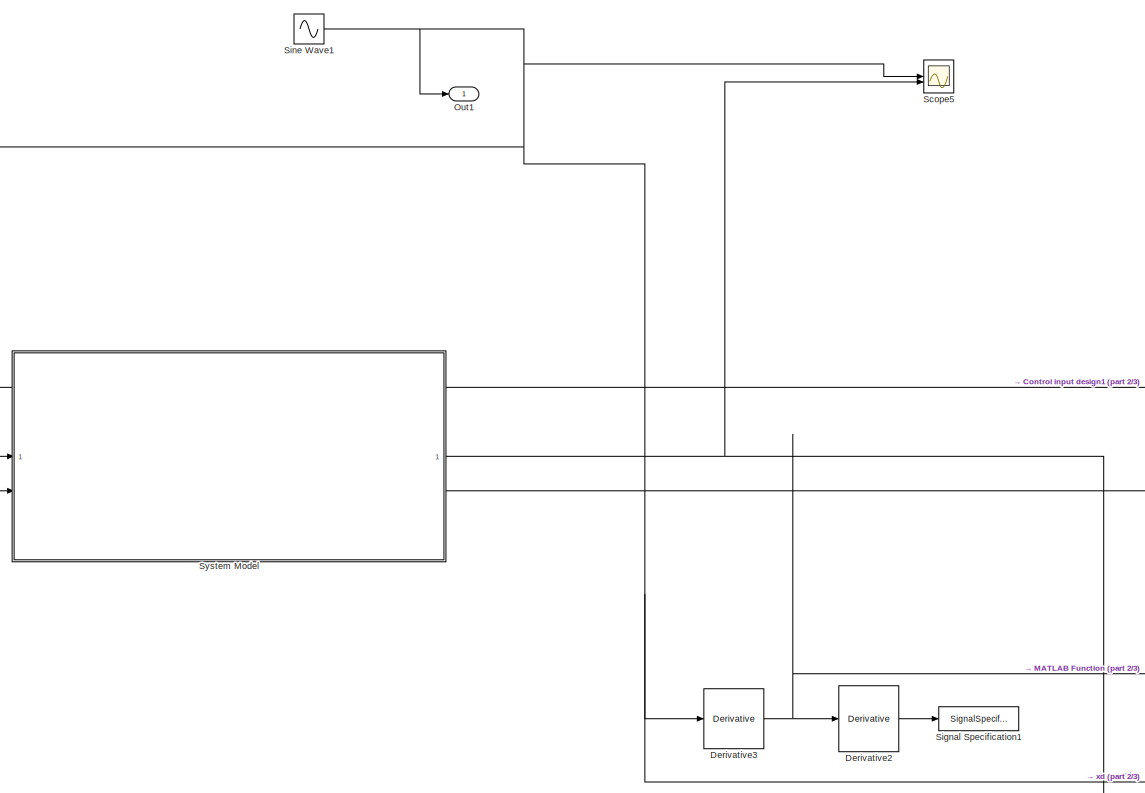
[diagram: root canvas - part 1/3, middle left region]
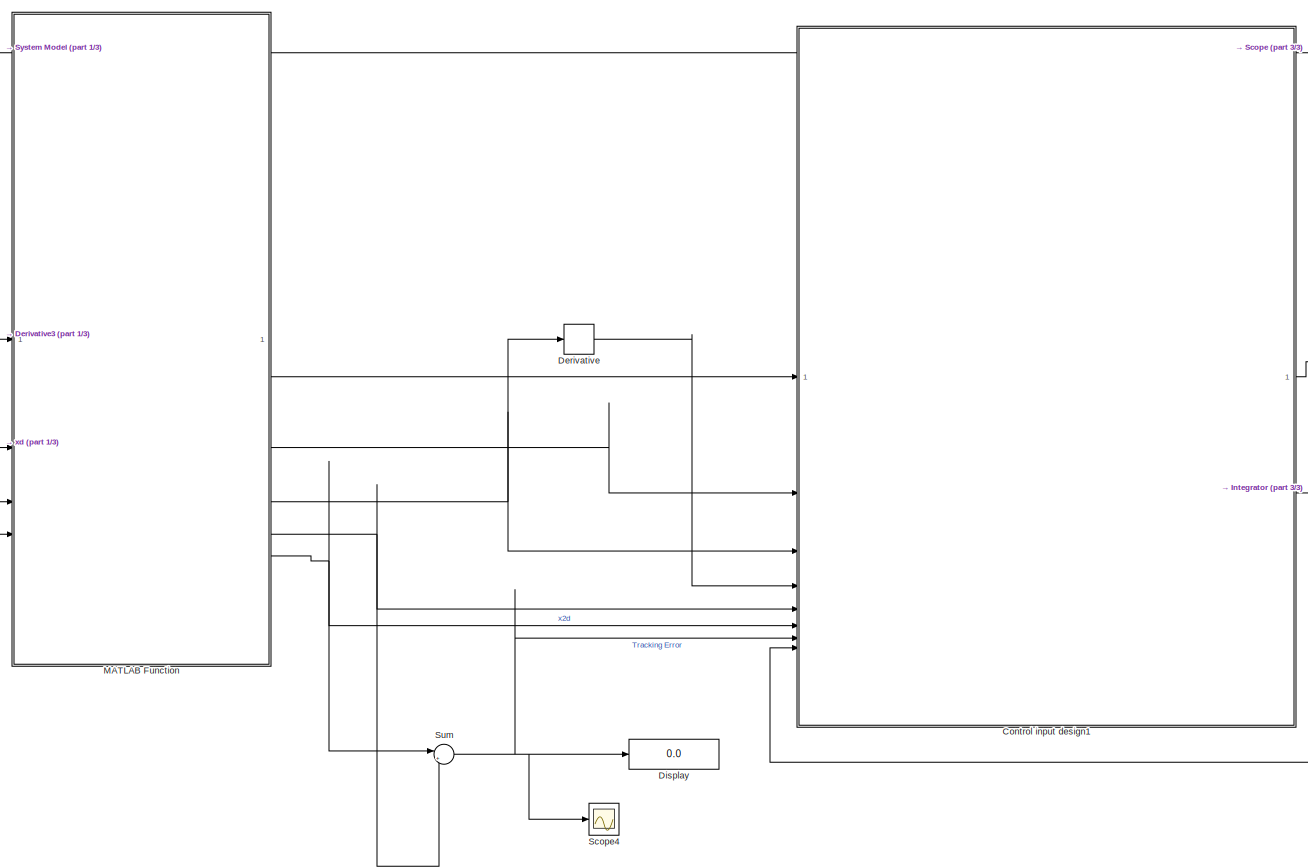
[diagram: root canvas - part 2/3, middle right region]
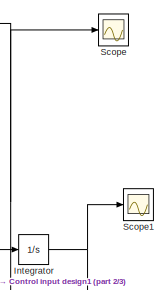
[diagram: root canvas - part 3/3, middle right region]
MODEL slx_8fe7bdc4851f
KIND model
CONFIG AbsTol = auto
CONFIG EnableMultiTasking = off
CONFIG FixedStep = auto
CONFIG MaxStep = auto
CONFIG MinStep = auto
CONFIG RelTol = 1e-3
CONFIG SampleTimeConstraint = Unconstrained
CONFIG SolverName = VariableStepAuto
CONFIG StartTime = 0.0
CONFIG StopTime = 10.0
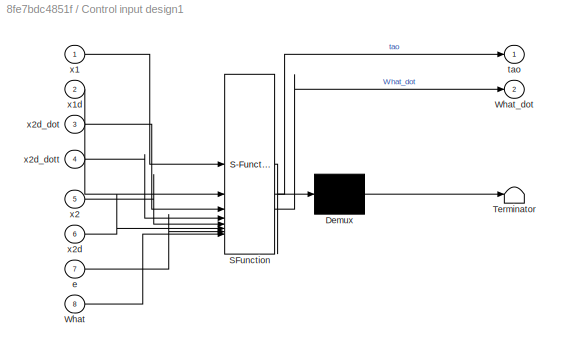
BLOCK [SubSystem] Control input design1
  ErrorFcn = Stateflow.Translate.translate
  PermitHierarchicalResolution = ExplicitOnly
  SFBlockType = MATLAB Function
  TreatAsAtomicUnit = on
BLOCK [Demux] Control input design1/ Demux 
  Outputs = 1
BLOCK [S-Function] Control input design1/ SFunction 
  EnableBusSupport = on
  FunctionName = sf_sfun
  PortCounts = [8 3]
  SFcnIsStateOwnerBlock = off
  SFunctionDeploymentMode = off
  Tag = Stateflow S-Function 3
BLOCK [Terminator] Control input design1/ Terminator 
BLOCK [Inport] Control input design1/What
  Port = 8
BLOCK [Outport] Control input design1/What_dot
  Port = 2
BLOCK [Inport] Control input design1/e
  Port = 7
BLOCK [Outport] Control input design1/tao
BLOCK [Inport] Control input design1/x1
BLOCK [Inport] Control input design1/x1d
  Port = 2
BLOCK [Inport] Control input design1/x2
  Port = 5
BLOCK [Inport] Control input design1/x2d
  Port = 6
BLOCK [Inport] Control input design1/x2d_dot
  Port = 3
BLOCK [Inport] Control input design1/x2d_dott
  Port = 4
BLOCK [Derivative] Derivative
BLOCK [Derivative] Derivative2
BLOCK [Derivative] Derivative3
BLOCK [Display] Display
  Decimation = 1
BLOCK [Integrator] Integrator
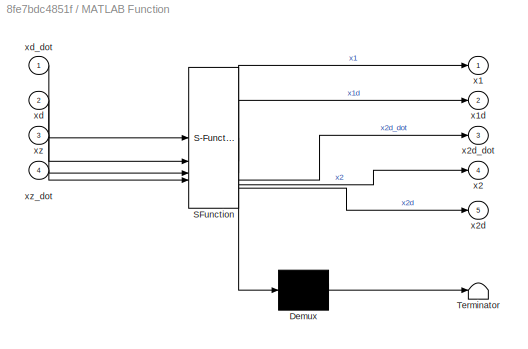
BLOCK [SubSystem] MATLAB Function
  ErrorFcn = Stateflow.Translate.translate
  PermitHierarchicalResolution = ExplicitOnly
  SFBlockType = MATLAB Function
  TreatAsAtomicUnit = on
BLOCK [Demux] MATLAB Function/ Demux 
  Outputs = 1
BLOCK [S-Function] MATLAB Function/ SFunction 
  EnableBusSupport = on
  FunctionName = sf_sfun
  PortCounts = [4 6]
  SFcnIsStateOwnerBlock = off
  SFunctionDeploymentMode = off
  Tag = Stateflow S-Function 2
BLOCK [Terminator] MATLAB Function/ Terminator 
BLOCK [Outport] MATLAB Function/x1
BLOCK [Outport] MATLAB Function/x1d
  Port = 2
BLOCK [Outport] MATLAB Function/x2
  Port = 4
BLOCK [Outport] MATLAB Function/x2d
  Port = 5
BLOCK [Outport] MATLAB Function/x2d_dot
  Port = 3
BLOCK [Inport] MATLAB Function/xd
  Port = 2
BLOCK [Inport] MATLAB Function/xd_dot
BLOCK [Inport] MATLAB Function/xz
  Port = 3
BLOCK [Inport] MATLAB Function/xz_dot
  Port = 4
BLOCK [Outport] Out1
BLOCK [Scope] Scope
  Floating = off
  NumInputPorts = 1
  ScopeSpecificationString = Simulink.scopes.TimeScopeBlockCfg('CurrentConfiguration', extmgr.ConfigurationSet(extmgr.Configuration('Core','General UI',true),extmgr.Configuration('Core','Source UI',true),extmgr.Configuration('Sources','WiredSimulink',true,'DataLoggingVariableName','ScopeData1'),extmgr.Configuration('Visuals','Time Domain',true,'SerializedDisplays',{struct('MinYLimReal','-8.47007','MaxYLimReal','6.21649','YLab...<+1502ch>
BLOCK [Scope] Scope1
  Floating = off
  NumInputPorts = 1
  ScopeSpecificationString = Simulink.scopes.TimeScopeBlockCfg('CurrentConfiguration', extmgr.ConfigurationSet(extmgr.Configuration('Core','General UI',true),extmgr.Configuration('Core','Source UI',true),extmgr.Configuration('Sources','WiredSimulink',true,'DataLoggingVariableName','ScopeData2'),extmgr.Configuration('Visuals','Time Domain',true,'SerializedDisplays',{struct('MinYLimReal','-0.34046','MaxYLimReal','0.1625','YLabe...<+1562ch>
BLOCK [Scope] Scope4
  Floating = off
  NumInputPorts = 1
  ScopeSpecificationString = Simulink.scopes.TimeScopeBlockCfg('CurrentConfiguration', extmgr.ConfigurationSet(extmgr.Configuration('Core','General UI',true),extmgr.Configuration('Core','Source UI',true),extmgr.Configuration('Sources','WiredSimulink',true),extmgr.Configuration('Visuals','Time Domain',true,'SerializedDisplays',{struct('MinYLimReal','-0.10979','MaxYLimReal','0.07159','YLabelReal','','MinYLimMag','0.00000','MaxY...<+1452ch>
BLOCK [Scope] Scope5
  Floating = off
  NumInputPorts = 2
  ScopeSpecificationString = Simulink.scopes.TimeScopeBlockCfg('CurrentConfiguration', extmgr.ConfigurationSet(extmgr.Configuration('Core','General UI',true),extmgr.Configuration('Core','Source UI',true),extmgr.Configuration('Sources','WiredSimulink',true,'DataLoggingVariableName','ScopeData5'),extmgr.Configuration('Visuals','Time Domain',true,'SerializedDisplays',{struct('MinYLimReal','-1.27121','MaxYLimReal','1.27447','YLab...<+1523ch>
BLOCK [SignalSpecification] Signal Specification1
  Dimensions = 1
BLOCK [Sin] Sine Wave1
  SampleTime = 0
BLOCK [Sum] Sum
  Inputs = |+-
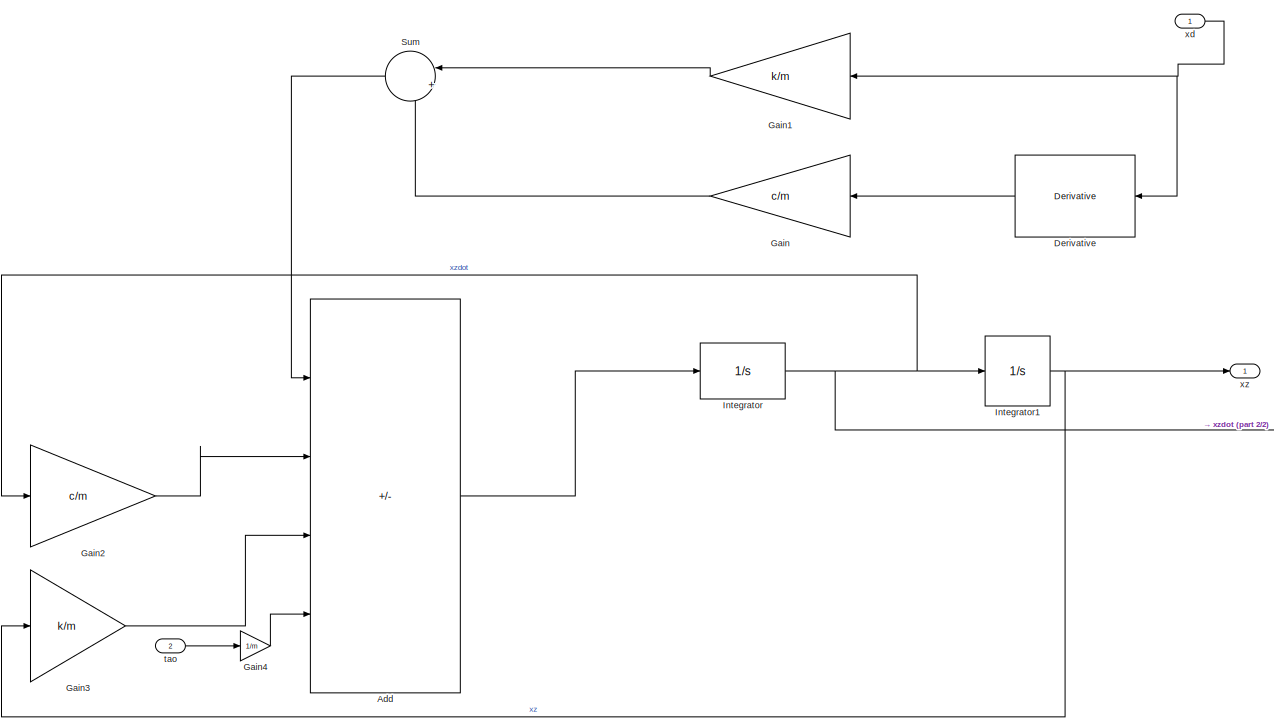
[diagram: System Model - part 1/2, left side, full height]
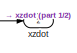
[diagram: System Model - part 2/2, middle right region]
BLOCK [SubSystem] System Model
BLOCK [Sum] System Model/Add
  IconShape = rectangular
  Inputs = +--+
BLOCK [Derivative] System Model/Derivative
BLOCK [Gain] System Model/Gain
  Gain = c/m
BLOCK [Gain] System Model/Gain1
  Gain = k/m
BLOCK [Gain] System Model/Gain2
  Gain = c/m
BLOCK [Gain] System Model/Gain3
  Gain = k/m
BLOCK [Gain] System Model/Gain4
  Gain = 1/m
BLOCK [Integrator] System Model/Integrator
BLOCK [Integrator] System Model/Integrator1
BLOCK [Sum] System Model/Sum
  Inputs = |++
BLOCK [Inport] System Model/tao
  Port = 2
BLOCK [Inport] System Model/xd
BLOCK [Outport] System Model/xz
BLOCK [Outport] System Model/xzdot
  Port = 2
NET Control input design1:1 -> Scope:1, System Model:2
LINE Control input design1:2 -> Integrator:1
LINE Derivative2:1 -> Signal Specification1:1
NET Derivative3:1 -> Derivative2:1, MATLAB Function:1
LINE Derivative:1 -> Control input design1:4
NET Integrator:1 -> Control input design1:8, Scope1:1
LINE MATLAB Function:1 -> Control input design1:1
LINE MATLAB Function:2 -> Control input design1:2
NET MATLAB Function:3 -> Control input design1:3, Derivative:1
NET MATLAB Function:4 -> Control input design1:5, Sum:2
NET MATLAB Function:5 -> Control input design1:6, Sum:1
NET Sine Wave1:1 -> Derivative3:1, MATLAB Function:2, Out1:1, Scope5:1, System Model:1
NET Sum:1 -> Control input design1:7, Display:1, Scope4:1
LINE System Model/Add:1 -> System Model/Integrator:1
LINE System Model/Derivative:1 -> System Model/Gain:1
LINE System Model/Gain1:1 -> System Model/Sum:1
LINE System Model/Gain2:1 -> System Model/Add:2
LINE System Model/Gain3:1 -> System Model/Add:3
LINE System Model/Gain4:1 -> System Model/Add:4
LINE System Model/Gain:1 -> System Model/Sum:2
NET System Model/Integrator1:1 -> System Model/Gain3:1, System Model/xz:1
NET System Model/Integrator:1 -> System Model/Gain2:1, System Model/Integrator1:1, System Model/xzdot:1
LINE System Model/Sum:1 -> System Model/Add:1
LINE System Model/tao:1 -> System Model/Gain4:1
NET System Model/xd:1 -> System Model/Derivative:1, System Model/Gain1:1
NET System Model:1 -> MATLAB Function:3, Scope5:2
LINE System Model:2 -> MATLAB Function:4
note: NET lines group one-source signal fan-out (src -> all destinations, sorted); 1:1 wires keep LINE
CHART MATLAB Function states=1 transitions=1
  STATE_LABEL 'eML_blk_kernel()'
  STATE_LABEL 'SCRIPT:\nfunction [x1,x1d,x2d_dot,x2,x2d] = Backstepping_approach_parameters(xd_dot,xd,xz,xz_dot)\n\nx1=xd_dot;\nx2=xd;\nx2_dot=x1;\nx2d=xz;\nx1d=xz_dot;\nx2d_dot=x1d;\n'
CHART Control input design1 states=1 transitions=1
  STATE_LABEL 'eML_blk_kernel()'
  STATE_LABEL "SCRIPT:\nfunction [tao, What_dot] = control_input(x1, x1d, x2d_dot, x2d_dott, x2, x2d, e, What)\n\n    % Gains\n    Kv = 3;\n    Kg = 5;\n    ro_epilson=2;\n    % Error Definitions\n    edot = -Kv * e;\n    Uv = x2d_dot + Kv * e;\n    ev = Uv - x1;\n\n   xv=[x2d_dott;edot;x1;x1d;x2; x2d];\n   h=tanh(xv);\n   What_dot=ev*h';\n\n  \n   % Control Input tao\n    tao = What*h+Kg*ev+e+ro_epilson*sign(ev);\n\nend\n"
CHART  states=0 transitions=0
CHART  states=0 transitions=0
